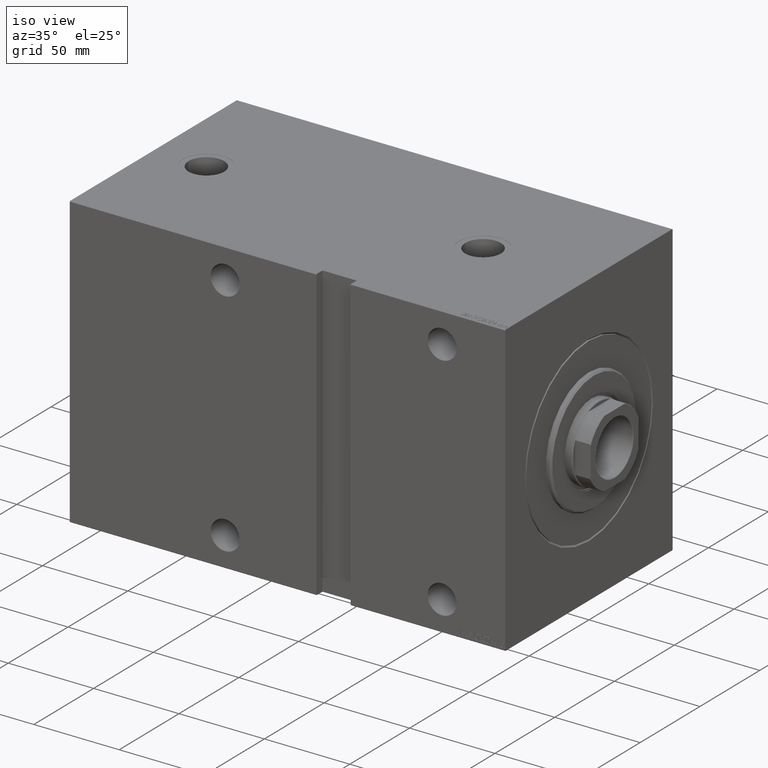
[diagram: clean part render]
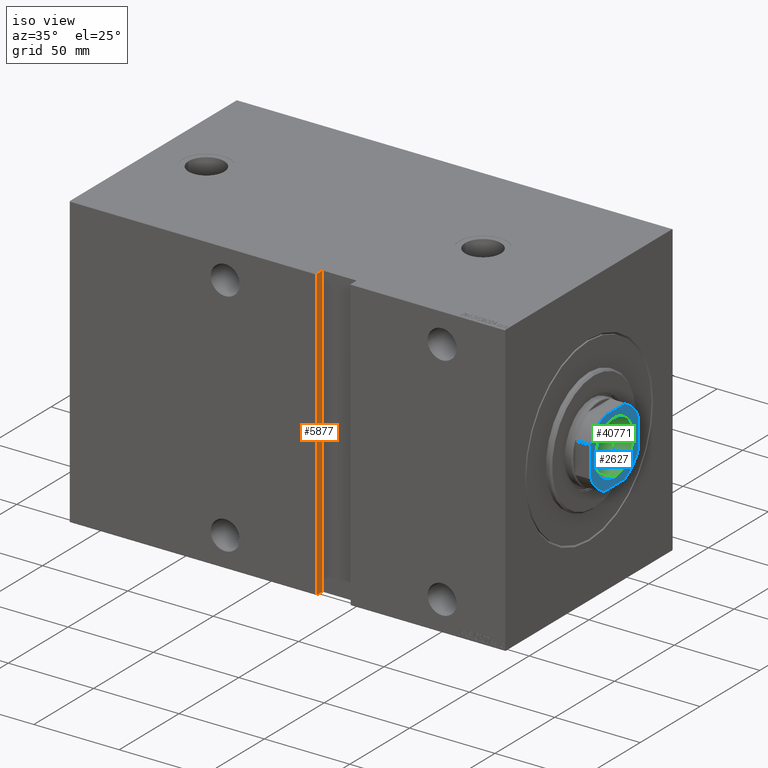
[diagram: same view with three faces highlighted in distinct colors, each labeled with its STEP entity id]
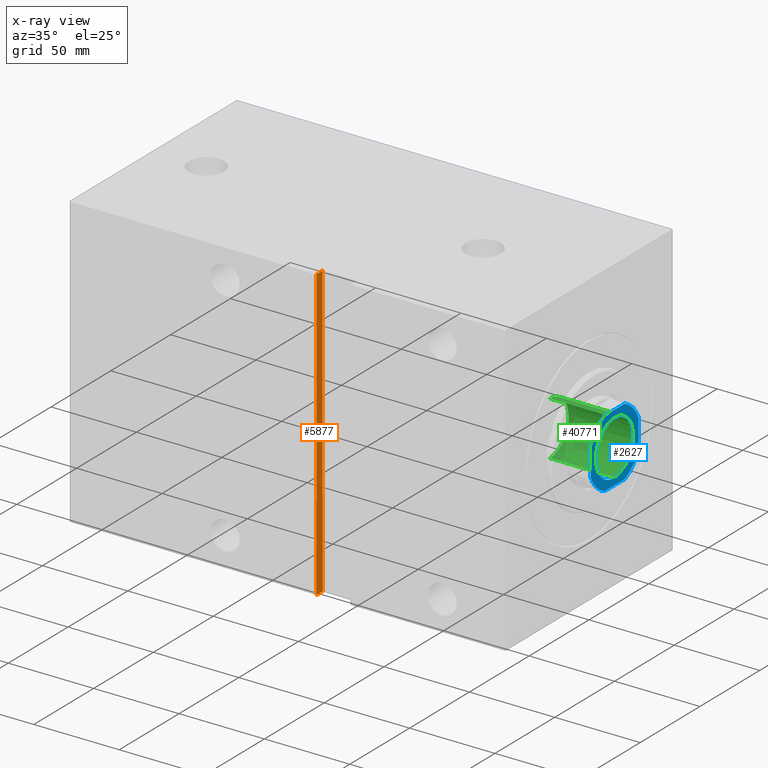
[diagram: x-ray of the same camera — body ghosted, the three highlighted faces saturated]
A machine part, iso view with three faces highlighted in distinct colors.
The next image is the same camera in x-ray (body ghosted, the three faces saturated) — at least one of them is partly hidden behind the body in this view.
Their STEP definitions:

[orange] entity #5877 — the highlighted planar face has unit normal (-1, 0, 0).
#1335 = FACE_OUTER_BOUND ( 'NONE', #21289, .T. ) ;
#3495 = CARTESIAN_POINT ( 'NONE',  ( 110.4999999999999858, 69.70000000000003126, 85.00000000000001421 ) ) ;
#4243 = VERTEX_POINT ( 'NONE', #35874 ) ;
#5674 = CARTESIAN_POINT ( 'NONE',  ( 110.4999999999999858, 70.00000000000001421, -84.99999999999997158 ) ) ;
#5799 = CARTESIAN_POINT ( 'NONE',  ( 110.4999999999999858, 65.00000000000001421, -84.99999999999997158 ) ) ;
#5849 = CARTESIAN_POINT ( 'NONE',  ( 110.4999999999999858, 70.00000000000001421, -84.70000000000004547 ) ) ;
#5877 = ADVANCED_FACE ( 'NONE', ( #1335 ), #43010, .F. ) ;
#6090 = ORIENTED_EDGE ( 'NONE', *, *, #18675, .T. ) ;
#6144 = VECTOR ( 'NONE', #41992, 1000.000000000000114 ) ;
#7157 = LINE ( 'NONE', #21043, #10695 ) ;
#10348 = ORIENTED_EDGE ( 'NONE', *, *, #21124, .T. ) ;
#10695 = VECTOR ( 'NONE', #14198, 1000.000000000000000 ) ;
#10903 = CARTESIAN_POINT ( 'NONE',  ( 110.4999999999999858, 64.99999999999998579, 85.00000000000001421 ) ) ;
#11797 = DIRECTION ( 'NONE',  ( 1.000000000000000000, 0.000000000000000000, 0.000000000000000000 ) ) ;
#13088 = EDGE_CURVE ( 'NONE', #43913, #4243, #13331, .T. ) ;
#13331 = LINE ( 'NONE', #44771, #20060 ) ;
#13568 = DIRECTION ( 'NONE',  ( 0.000000000000000000, -0.7071067811865638930, -0.7071067811865311414 ) ) ;
#14198 = DIRECTION ( 'NONE',  ( -0.000000000000000000, 1.000000000000000000, 1.261617073437677752E-16 ) ) ;
#16075 = EDGE_CURVE ( 'NONE', #23819, #32319, #37054, .T. ) ;
#17677 = AXIS2_PLACEMENT_3D ( 'NONE', #29115, #11797, #39584 ) ;
#18675 = EDGE_CURVE ( 'NONE', #27732, #23819, #40958, .T. ) ;
#19234 = EDGE_CURVE ( 'NONE', #4243, #32319, #37001, .T. ) ;
#19684 = DIRECTION ( 'NONE',  ( -0.000000000000000000, 1.000000000000000000, 1.261617073437677752E-16 ) ) ;
#20060 = VECTOR ( 'NONE', #24041, 1000.000000000000000 ) ;
#20122 = ORIENTED_EDGE ( 'NONE', *, *, #31567, .T. ) ;
#20460 = CARTESIAN_POINT ( 'NONE',  ( 110.4999999999999858, 70.00000000000001421, -84.70000000000004547 ) ) ;
#21043 = CARTESIAN_POINT ( 'NONE',  ( 110.4999999999999858, 64.99999999999998579, 85.00000000000001421 ) ) ;
#21124 = EDGE_CURVE ( 'NONE', #43913, #39815, #7157, .T. ) ;
#21289 = EDGE_LOOP ( 'NONE', ( #6090, #26522, #25984, #27844, #10348, #20122 ) ) ;
#23161 = CARTESIAN_POINT ( 'NONE',  ( 110.4999999999999858, 69.70000000000004547, -84.99999999999997158 ) ) ;
#23649 = DIRECTION ( 'NONE',  ( -0.000000000000000000, 1.632680918566406793E-16, -1.000000000000000000 ) ) ;
#23819 = VERTEX_POINT ( 'NONE', #20460 ) ;
#24041 = DIRECTION ( 'NONE',  ( -0.000000000000000000, 1.632680918566406793E-16, -1.000000000000000000 ) ) ;
#25984 = ORIENTED_EDGE ( 'NONE', *, *, #19234, .F. ) ;
#26522 = ORIENTED_EDGE ( 'NONE', *, *, #16075, .T. ) ;
#27732 = VERTEX_POINT ( 'NONE', #41866 ) ;
#27843 = CARTESIAN_POINT ( 'NONE',  ( 110.4999999999999858, 69.70000000000003126, 85.00000000000001421 ) ) ;
#27844 = ORIENTED_EDGE ( 'NONE', *, *, #13088, .F. ) ;
#28093 = LINE ( 'NONE', #3495, #6144 ) ;
#29115 = CARTESIAN_POINT ( 'NONE',  ( 110.4999999999999858, 65.00000000000001421, -84.99999999999997158 ) ) ;
#31567 = EDGE_CURVE ( 'NONE', #39815, #27732, #28093, .T. ) ;
#32319 = VERTEX_POINT ( 'NONE', #23161 ) ;
#35874 = CARTESIAN_POINT ( 'NONE',  ( 110.4999999999999858, 65.00000000000002842, -85.00000000000000000 ) ) ;
#37001 = LINE ( 'NONE', #5799, #41226 ) ;
#37054 = LINE ( 'NONE', #5849, #38198 ) ;
#38198 = VECTOR ( 'NONE', #13568, 1000.000000000000000 ) ;
#38265 = VECTOR ( 'NONE', #23649, 1000.000000000000000 ) ;
#39584 = DIRECTION ( 'NONE',  ( 0.000000000000000000, 0.000000000000000000, -1.000000000000000000 ) ) ;
#39815 = VERTEX_POINT ( 'NONE', #27843 ) ;
#40958 = LINE ( 'NONE', #5674, #38265 ) ;
#41226 = VECTOR ( 'NONE', #19684, 1000.000000000000000 ) ;
#41866 = CARTESIAN_POINT ( 'NONE',  ( 110.4999999999999858, 69.99999999999998579, 84.70000000000007390 ) ) ;
#41992 = DIRECTION ( 'NONE',  ( -0.000000000000000000, 0.7071067811865638930, -0.7071067811865312525 ) ) ;
#43010 = PLANE ( 'NONE',  #17677 ) ;
#43913 = VERTEX_POINT ( 'NONE', #10903 ) ;
#44771 = CARTESIAN_POINT ( 'NONE',  ( 110.4999999999999858, 65.00000000000001421, -84.99999999999997158 ) ) ;

[blue] entity #2627 — the highlighted planar face has unit normal (1, 0, 0).
#1226 = CIRCLE ( 'NONE', #26698, 16.04999999999995453 ) ;
#1242 = VERTEX_POINT ( 'NONE', #42059 ) ;
#1961 = DIRECTION ( 'NONE',  ( -1.734723475976807094E-16, 1.000000000000000000, -0.000000000000000000 ) ) ;
#2627 = ADVANCED_FACE ( 'NONE', ( #6996, #7221 ), #21106, .T. ) ;
#3682 = DIRECTION ( 'NONE',  ( 0.000000000000000000, -0.000000000000000000, -1.000000000000000000 ) ) ;
#3781 = AXIS2_PLACEMENT_3D ( 'NONE', #34790, #31581, #35221 ) ;
#4101 = EDGE_CURVE ( 'NONE', #25758, #33237, #20514, .T. ) ;
#6732 = VERTEX_POINT ( 'NONE', #36134 ) ;
#6996 = FACE_BOUND ( 'NONE', #32904, .T. ) ;
#7093 = CARTESIAN_POINT ( 'NONE',  ( 19.99999999999999645, -8.419619943916403670, 244.0000000000000000 ) ) ;
#7221 = FACE_OUTER_BOUND ( 'NONE', #40779, .T. ) ;
#8805 = CARTESIAN_POINT ( 'NONE',  ( 19.99999999999999289, 20.00000000000000000, 244.0000000000000000 ) ) ;
#8910 = DIRECTION ( 'NONE',  ( -0.000000000000000000, 0.000000000000000000, 1.000000000000000000 ) ) ;
#9535 = ORIENTED_EDGE ( 'NONE', *, *, #14092, .T. ) ;
#9551 = DIRECTION ( 'NONE',  ( -0.000000000000000000, 0.000000000000000000, 1.000000000000000000 ) ) ;
#11052 = AXIS2_PLACEMENT_3D ( 'NONE', #12964, #9551, #27540 ) ;
#11191 = EDGE_CURVE ( 'NONE', #44988, #1242, #33103, .T. ) ;
#11505 = EDGE_CURVE ( 'NONE', #19208, #6732, #18522, .T. ) ;
#12009 = EDGE_CURVE ( 'NONE', #33237, #44988, #25654, .T. ) ;
#12844 = CARTESIAN_POINT ( 'NONE',  ( -20.00000000000000711, 20.00000000000000000, 244.0000000000000000 ) ) ;
#12964 = CARTESIAN_POINT ( 'NONE',  ( 0.000000000000000000, 0.000000000000000000, 244.0000000000000000 ) ) ;
#13546 = ORIENTED_EDGE ( 'NONE', *, *, #31406, .T. ) ;
#13865 = DIRECTION ( 'NONE',  ( 0.000000000000000000, -0.000000000000000000, -1.000000000000000000 ) ) ;
#14092 = EDGE_CURVE ( 'NONE', #18945, #36407, #26601, .T. ) ;
#14202 = VECTOR ( 'NONE', #1961, 1000.000000000000000 ) ;
#15743 = DIRECTION ( 'NONE',  ( 1.000000000000000000, 0.000000000000000000, 0.000000000000000000 ) ) ;
#16280 = VECTOR ( 'NONE', #36551, 1000.000000000000000 ) ;
#16322 = VECTOR ( 'NONE', #16923, 1000.000000000000000 ) ;
#16406 = CARTESIAN_POINT ( 'NONE',  ( -16.04999999999995453, 1.965558112631495894E-15, 244.0000000000000000 ) ) ;
#16923 = DIRECTION ( 'NONE',  ( -1.000000000000000000, -0.000000000000000000, -0.000000000000000000 ) ) ;
#17016 = ORIENTED_EDGE ( 'NONE', *, *, #33858, .T. ) ;
#17844 = ORIENTED_EDGE ( 'NONE', *, *, #34144, .T. ) ;
#18522 = CIRCLE ( 'NONE', #22923, 21.69999999999983586 ) ;
#18945 = VERTEX_POINT ( 'NONE', #41816 ) ;
#18964 = ORIENTED_EDGE ( 'NONE', *, *, #4101, .T. ) ;
#19208 = VERTEX_POINT ( 'NONE', #23102 ) ;
#19696 = LINE ( 'NONE', #37014, #16280 ) ;
#19984 = ORIENTED_EDGE ( 'NONE', *, *, #22360, .T. ) ;
#20375 = DIRECTION ( 'NONE',  ( -0.000000000000000000, 0.000000000000000000, 1.000000000000000000 ) ) ;
#20514 = CIRCLE ( 'NONE', #11052, 21.69999999999987850 ) ;
#21106 = PLANE ( 'NONE',  #3781 ) ;
#21559 = ORIENTED_EDGE ( 'NONE', *, *, #42036, .T. ) ;
#22360 = EDGE_CURVE ( 'NONE', #6732, #25758, #38592, .T. ) ;
#22904 = ORIENTED_EDGE ( 'NONE', *, *, #11505, .T. ) ;
#22923 = AXIS2_PLACEMENT_3D ( 'NONE', #36689, #8910, #15743 ) ;
#23102 = CARTESIAN_POINT ( 'NONE',  ( -20.00000000000000355, -8.419619943916281102, 244.0000000000000000 ) ) ;
#23897 = CARTESIAN_POINT ( 'NONE',  ( 0.000000000000000000, 0.000000000000000000, 244.0000000000000000 ) ) ;
#24420 = AXIS2_PLACEMENT_3D ( 'NONE', #43583, #40153, #33111 ) ;
#25654 = LINE ( 'NONE', #8805, #14202 ) ;
#25758 = VERTEX_POINT ( 'NONE', #36587 ) ;
#26537 = CARTESIAN_POINT ( 'NONE',  ( -20.00000000000000711, 8.419619943916275773, 244.0000000000000000 ) ) ;
#26601 = CIRCLE ( 'NONE', #24420, 21.69999999999983586 ) ;
#26698 = AXIS2_PLACEMENT_3D ( 'NONE', #23897, #13865, #41662 ) ;
#26802 = VERTEX_POINT ( 'NONE', #33700 ) ;
#27444 = CARTESIAN_POINT ( 'NONE',  ( 0.000000000000000000, 0.000000000000000000, 244.0000000000000000 ) ) ;
#27540 = DIRECTION ( 'NONE',  ( 1.000000000000000000, 0.000000000000000000, 0.000000000000000000 ) ) ;
#27927 = AXIS2_PLACEMENT_3D ( 'NONE', #41722, #3682, #37396 ) ;
#31142 = CARTESIAN_POINT ( 'NONE',  ( 19.99999999999999645, 8.419619943916408999, 244.0000000000000000 ) ) ;
#31406 = EDGE_CURVE ( 'NONE', #1242, #18945, #44494, .T. ) ;
#31581 = DIRECTION ( 'NONE',  ( -0.000000000000000000, 0.000000000000000000, 1.000000000000000000 ) ) ;
#32437 = DIRECTION ( 'NONE',  ( 1.000000000000000000, 0.000000000000000000, 0.000000000000000000 ) ) ;
#32904 = EDGE_LOOP ( 'NONE', ( #17844, #21559 ) ) ;
#33096 = ORIENTED_EDGE ( 'NONE', *, *, #11191, .T. ) ;
#33103 = CIRCLE ( 'NONE', #34570, 21.69999999999987850 ) ;
#33111 = DIRECTION ( 'NONE',  ( 1.000000000000000000, 0.000000000000000000, 0.000000000000000000 ) ) ;
#33237 = VERTEX_POINT ( 'NONE', #7093 ) ;
#33700 = CARTESIAN_POINT ( 'NONE',  ( 16.04999999999995453, 0.000000000000000000, 244.0000000000000000 ) ) ;
#33858 = EDGE_CURVE ( 'NONE', #36407, #19208, #19696, .T. ) ;
#34144 = EDGE_CURVE ( 'NONE', #26802, #37851, #42562, .T. ) ;
#34570 = AXIS2_PLACEMENT_3D ( 'NONE', #27444, #20375, #34961 ) ;
#34790 = CARTESIAN_POINT ( 'NONE',  ( 0.000000000000000000, 0.000000000000000000, 244.0000000000000000 ) ) ;
#34961 = DIRECTION ( 'NONE',  ( 1.000000000000000000, 0.000000000000000000, 0.000000000000000000 ) ) ;
#35221 = DIRECTION ( 'NONE',  ( 1.000000000000000000, 0.000000000000000000, 0.000000000000000000 ) ) ;
#36134 = CARTESIAN_POINT ( 'NONE',  ( -8.419619943916289984, -20.00000000000000000, 244.0000000000000000 ) ) ;
#36407 = VERTEX_POINT ( 'NONE', #26537 ) ;
#36551 = DIRECTION ( 'NONE',  ( 8.673617379884035472E-17, -1.000000000000000000, 0.000000000000000000 ) ) ;
#36587 = CARTESIAN_POINT ( 'NONE',  ( 8.419619943916396565, -20.00000000000000000, 244.0000000000000000 ) ) ;
#36689 = CARTESIAN_POINT ( 'NONE',  ( 0.000000000000000000, 0.000000000000000000, 244.0000000000000000 ) ) ;
#37014 = CARTESIAN_POINT ( 'NONE',  ( -20.00000000000000711, 20.00000000000000000, 244.0000000000000000 ) ) ;
#37396 = DIRECTION ( 'NONE',  ( 1.000000000000000000, 0.000000000000000000, 0.000000000000000000 ) ) ;
#37851 = VERTEX_POINT ( 'NONE', #16406 ) ;
#38592 = LINE ( 'NONE', #42025, #39104 ) ;
#39104 = VECTOR ( 'NONE', #32437, 1000.000000000000000 ) ;
#40153 = DIRECTION ( 'NONE',  ( -0.000000000000000000, 0.000000000000000000, 1.000000000000000000 ) ) ;
#40779 = EDGE_LOOP ( 'NONE', ( #42043, #33096, #13546, #9535, #17016, #22904, #19984, #18964 ) ) ;
#41662 = DIRECTION ( 'NONE',  ( 1.000000000000000000, 0.000000000000000000, 0.000000000000000000 ) ) ;
#41722 = CARTESIAN_POINT ( 'NONE',  ( 0.000000000000000000, 0.000000000000000000, 244.0000000000000000 ) ) ;
#41816 = CARTESIAN_POINT ( 'NONE',  ( -8.419619943916289984, 20.00000000000000000, 244.0000000000000000 ) ) ;
#42025 = CARTESIAN_POINT ( 'NONE',  ( -20.00000000000000355, -20.00000000000000000, 244.0000000000000000 ) ) ;
#42036 = EDGE_CURVE ( 'NONE', #37851, #26802, #1226, .T. ) ;
#42043 = ORIENTED_EDGE ( 'NONE', *, *, #12009, .T. ) ;
#42059 = CARTESIAN_POINT ( 'NONE',  ( 8.419619943916396565, 20.00000000000000000, 244.0000000000000000 ) ) ;
#42562 = CIRCLE ( 'NONE', #27927, 16.04999999999995453 ) ;
#43583 = CARTESIAN_POINT ( 'NONE',  ( 0.000000000000000000, 0.000000000000000000, 244.0000000000000000 ) ) ;
#44494 = LINE ( 'NONE', #12844, #16322 ) ;
#44988 = VERTEX_POINT ( 'NONE', #31142 ) ;

[green] entity #40771 — the highlighted cylindrical surface (edge-blend (fillet) strip) has radius 15.75 mm, axis along (1, 0, 0).
#462 = CARTESIAN_POINT ( 'NONE',  ( 0.000000000000000000, 0.000000000000000000, 243.7000000000000171 ) ) ;
#732 = ORIENTED_EDGE ( 'NONE', *, *, #28826, .T. ) ;
#1200 = AXIS2_PLACEMENT_3D ( 'NONE', #44894, #3208, #13455 ) ;
#2534 = AXIS2_PLACEMENT_3D ( 'NONE', #22934, #26586, #12681 ) ;
#3208 = DIRECTION ( 'NONE',  ( -0.000000000000000000, -0.000000000000000000, 1.000000000000000000 ) ) ;
#3875 = DIRECTION ( 'NONE',  ( 0.000000000000000000, 0.000000000000000000, 1.000000000000000000 ) ) ;
#7997 = VECTOR ( 'NONE', #20177, 1000.000000000000000 ) ;
#8977 = CARTESIAN_POINT ( 'NONE',  ( 15.74999999999999289, 0.000000000000000000, 206.0000000000000000 ) ) ;
#12557 = EDGE_CURVE ( 'NONE', #24260, #36973, #29488, .T. ) ;
#12681 = DIRECTION ( 'NONE',  ( 1.000000000000000000, 0.000000000000000000, 0.000000000000000000 ) ) ;
#12745 = AXIS2_PLACEMENT_3D ( 'NONE', #462, #3875, #29137 ) ;
#13420 = CARTESIAN_POINT ( 'NONE',  ( -15.74999999999999289, 1.928818708657080556E-15, 243.7000000000000171 ) ) ;
#13455 = DIRECTION ( 'NONE',  ( 1.000000000000000000, 0.000000000000000000, 0.000000000000000000 ) ) ;
#14240 = LINE ( 'NONE', #30876, #7997 ) ;
#16461 = CARTESIAN_POINT ( 'NONE',  ( 15.74999999999999289, 0.000000000000000000, 243.7000000000000171 ) ) ;
#16636 = VECTOR ( 'NONE', #40799, 1000.000000000000000 ) ;
#16977 = VERTEX_POINT ( 'NONE', #27442 ) ;
#19496 = ORIENTED_EDGE ( 'NONE', *, *, #32870, .F. ) ;
#20177 = DIRECTION ( 'NONE',  ( -0.000000000000000000, -0.000000000000000000, 1.000000000000000000 ) ) ;
#20534 = ORIENTED_EDGE ( 'NONE', *, *, #26505, .F. ) ;
#22164 = CIRCLE ( 'NONE', #2534, 15.74999999999999289 ) ;
#22934 = CARTESIAN_POINT ( 'NONE',  ( 0.000000000000000000, 0.000000000000000000, 206.0000000000000000 ) ) ;
#23205 = VERTEX_POINT ( 'NONE', #8977 ) ;
#24260 = VERTEX_POINT ( 'NONE', #16461 ) ;
#26505 = EDGE_CURVE ( 'NONE', #16977, #36973, #43993, .T. ) ;
#26586 = DIRECTION ( 'NONE',  ( -0.000000000000000000, -0.000000000000000000, 1.000000000000000000 ) ) ;
#26697 = CYLINDRICAL_SURFACE ( 'NONE', #1200, 15.74999999999999289 ) ;
#27442 = CARTESIAN_POINT ( 'NONE',  ( -15.74999999999999289, 1.928818708657080556E-15, 206.0000000000000000 ) ) ;
#27854 = EDGE_LOOP ( 'NONE', ( #20534, #19496, #732, #40995 ) ) ;
#28826 = EDGE_CURVE ( 'NONE', #23205, #24260, #14240, .T. ) ;
#29137 = DIRECTION ( 'NONE',  ( 1.000000000000000000, 0.000000000000000000, 0.000000000000000000 ) ) ;
#29488 = CIRCLE ( 'NONE', #12745, 15.74999999999999289 ) ;
#30876 = CARTESIAN_POINT ( 'NONE',  ( 15.74999999999999289, 0.000000000000000000, 244.0000000000000000 ) ) ;
#32870 = EDGE_CURVE ( 'NONE', #23205, #16977, #22164, .T. ) ;
#33303 = CARTESIAN_POINT ( 'NONE',  ( -15.74999999999999289, 1.928818708657080556E-15, 244.0000000000000000 ) ) ;
#36973 = VERTEX_POINT ( 'NONE', #13420 ) ;
#40771 = ADVANCED_FACE ( 'NONE', ( #44000 ), #26697, .F. ) ;
#40799 = DIRECTION ( 'NONE',  ( -0.000000000000000000, -0.000000000000000000, 1.000000000000000000 ) ) ;
#40995 = ORIENTED_EDGE ( 'NONE', *, *, #12557, .T. ) ;
#43993 = LINE ( 'NONE', #33303, #16636 ) ;
#44000 = FACE_OUTER_BOUND ( 'NONE', #27854, .T. ) ;
#44894 = CARTESIAN_POINT ( 'NONE',  ( 0.000000000000000000, 0.000000000000000000, 244.0000000000000000 ) ) ;